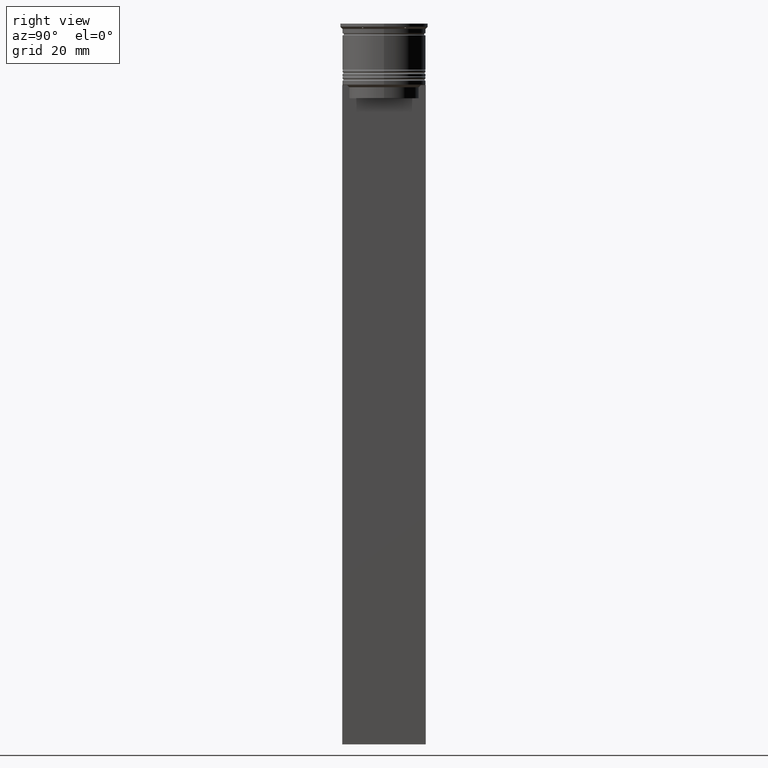
[diagram: clean part render]
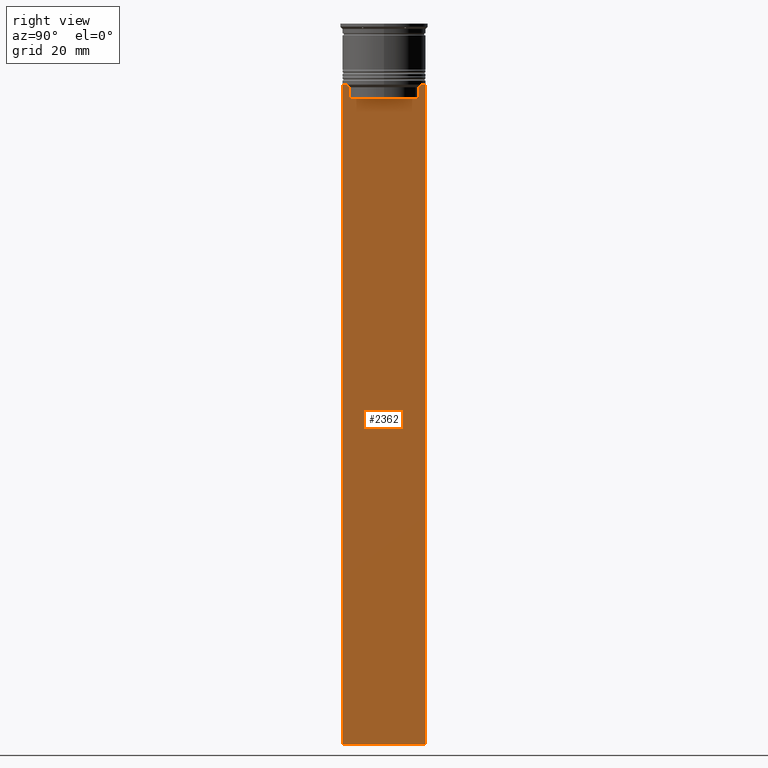
[diagram: same view with one face highlighted and labeled with its STEP entity id]
A machine part, right view. The second image highlights one B-rep face of the part: STEP entity #2362.
In plain terms, the highlighted planar face has unit normal (-1, 0, 0).
Its self-contained STEP definition (entity closure, byte-faithful):
#29 = CARTESIAN_POINT ( 'NONE',  ( 0.5000000000000000000, 7.884161337770803080, -14.50000000000000000 ) ) ;
#51 = CARTESIAN_POINT ( 'NONE',  ( 0.5000000000000000000, 7.884161337770803080, -14.50000000000000000 ) ) ;
#59 = VECTOR ( 'NONE', #1140, 1000.000000000000000 ) ;
#65 = DIRECTION ( 'NONE',  ( 0.000000000000000000, -1.000000000000000000, 0.000000000000000000 ) ) ;
#70 = EDGE_CURVE ( 'NONE', #1468, #2367, #1620, .T. ) ;
#77 = VERTEX_POINT ( 'NONE', #1476 ) ;
#176 = VECTOR ( 'NONE', #2489, 1000.000000000000000 ) ;
#210 = VECTOR ( 'NONE', #1593, 1000.000000000000000 ) ;
#212 = CARTESIAN_POINT ( 'NONE',  ( 0.5000000000000000000, 8.218133718559618828, -14.16667606394327983 ) ) ;
#215 = VERTEX_POINT ( 'NONE', #51 ) ;
#253 = EDGE_CURVE ( 'NONE', #2470, #1881, #1568, .T. ) ;
#264 = LINE ( 'NONE', #1933, #2396 ) ;
#289 = ORIENTED_EDGE ( 'NONE', *, *, #1635, .T. ) ;
#300 = CARTESIAN_POINT ( 'NONE',  ( 0.5000000000000000000, -9.500000000000001776, -14.00000000000000178 ) ) ;
#324 = ORIENTED_EDGE ( 'NONE', *, *, #2540, .T. ) ;
#330 = CARTESIAN_POINT ( 'NONE',  ( 0.5000000000000000000, -9.500000000000001776, -163.9999999999999716 ) ) ;
#365 = DIRECTION ( 'NONE',  ( 0.000000000000000000, 1.000000000000000000, 0.000000000000000000 ) ) ;
#427 = CARTESIAN_POINT ( 'NONE',  ( 0.5000000000000000000, -7.884161337770803080, -14.50000000000000000 ) ) ;
#504 = EDGE_CURVE ( 'NONE', #626, #77, #1657, .T. ) ;
#527 = LINE ( 'NONE', #728, #969 ) ;
#547 = B_SPLINE_CURVE_WITH_KNOTS ( 'NONE', 3,
 ( #1850, #212, #859, #29 ),
 .UNSPECIFIED., .F., .F.,
 ( 4, 4 ),
 ( 0.01426761478740281447, 0.01497538974438914448 ),
 .UNSPECIFIED. ) ;
#587 = B_SPLINE_CURVE_WITH_KNOTS ( 'NONE', 3,
 ( #2021, #2184, #1193, #959 ),
 .UNSPECIFIED., .F., .F.,
 ( 4, 4 ),
 ( 0.03673372442973153046, 0.03744389749832059688 ),
 .UNSPECIFIED. ) ;
#592 = CARTESIAN_POINT ( 'NONE',  ( 0.5000000000000000000, 8.385105843100605583, -14.00000000000000178 ) ) ;
#608 = VECTOR ( 'NONE', #2064, 1000.000000000000000 ) ;
#619 = DIRECTION ( 'NONE',  ( 0.000000000000000000, -1.000000000000000000, 0.000000000000000000 ) ) ;
#626 = VERTEX_POINT ( 'NONE', #1898 ) ;
#661 = VECTOR ( 'NONE', #2665, 1000.000000000000000 ) ;
#663 = FACE_OUTER_BOUND ( 'NONE', #2548, .T. ) ;
#728 = CARTESIAN_POINT ( 'NONE',  ( 0.5000000000000000000, -9.500000000000001776, -14.00000000000000178 ) ) ;
#740 = VECTOR ( 'NONE', #2671, 1000.000000000000000 ) ;
#811 = CARTESIAN_POINT ( 'NONE',  ( 0.5000000000000000000, 9.499999999999998224, 5.026297590440445440 ) ) ;
#825 = EDGE_CURVE ( 'NONE', #626, #2367, #2659, .T. ) ;
#859 = CARTESIAN_POINT ( 'NONE',  ( 0.5000000000000000000, 8.051152811434374001, -14.33334332653219079 ) ) ;
#889 = VERTEX_POINT ( 'NONE', #427 ) ;
#929 = LINE ( 'NONE', #1160, #59 ) ;
#951 = ORIENTED_EDGE ( 'NONE', *, *, #825, .F. ) ;
#959 = CARTESIAN_POINT ( 'NONE',  ( 0.5000000000000000000, -8.385105843100605583, -14.00000000000000178 ) ) ;
#969 = VECTOR ( 'NONE', #2582, 1000.000000000000000 ) ;
#1061 = CARTESIAN_POINT ( 'NONE',  ( 0.5000000000000000000, -9.500000000000001776, 5.026297590440445440 ) ) ;
#1072 = CARTESIAN_POINT ( 'NONE',  ( 0.5000000000000000000, 7.884161337770803080, -17.00000000000000000 ) ) ;
#1084 = EDGE_CURVE ( 'NONE', #889, #2325, #587, .T. ) ;
#1085 = DIRECTION ( 'NONE',  ( 0.000000000000000000, 0.000000000000000000, 1.000000000000000000 ) ) ;
#1140 = DIRECTION ( 'NONE',  ( 0.000000000000000000, 0.000000000000000000, -1.000000000000000000 ) ) ;
#1160 = CARTESIAN_POINT ( 'NONE',  ( 0.5000000000000000000, -9.500000000000001776, 5.026297590440445440 ) ) ;
#1193 = CARTESIAN_POINT ( 'NONE',  ( 0.5000000000000000000, -8.218133703942523738, -14.16667607853445787 ) ) ;
#1237 = CARTESIAN_POINT ( 'NONE',  ( 0.5000000000000000000, -7.884161337770803080, 0.000000000000000000 ) ) ;
#1242 = LINE ( 'NONE', #2492, #608 ) ;
#1247 = ORIENTED_EDGE ( 'NONE', *, *, #253, .T. ) ;
#1293 = CARTESIAN_POINT ( 'NONE',  ( 0.5000000000000000000, 9.499999999999998224, -163.9999999999999716 ) ) ;
#1301 = EDGE_CURVE ( 'NONE', #215, #2470, #1242, .T. ) ;
#1361 = CARTESIAN_POINT ( 'NONE',  ( 0.5000000000000000000, 7.899999999999994138, -17.00000000000000000 ) ) ;
#1468 = VERTEX_POINT ( 'NONE', #330 ) ;
#1474 = LINE ( 'NONE', #1237, #661 ) ;
#1476 = CARTESIAN_POINT ( 'NONE',  ( 0.5000000000000000000, 9.386692708297204035, -14.00000000000000178 ) ) ;
#1497 = EDGE_CURVE ( 'NONE', #77, #1897, #527, .T. ) ;
#1561 = ORIENTED_EDGE ( 'NONE', *, *, #504, .T. ) ;
#1568 = LINE ( 'NONE', #1361, #210 ) ;
#1573 = VECTOR ( 'NONE', #365, 1000.000000000000000 ) ;
#1593 = DIRECTION ( 'NONE',  ( 0.000000000000000000, -1.000000000000000000, 0.000000000000000000 ) ) ;
#1620 = LINE ( 'NONE', #1679, #1573 ) ;
#1635 = EDGE_CURVE ( 'NONE', #1881, #889, #1474, .T. ) ;
#1657 = LINE ( 'NONE', #2471, #2555 ) ;
#1670 = ORIENTED_EDGE ( 'NONE', *, *, #70, .T. ) ;
#1676 = LINE ( 'NONE', #2456, #176 ) ;
#1679 = CARTESIAN_POINT ( 'NONE',  ( 0.5000000000000000000, -9.500000000000001776, -163.9999999999999716 ) ) ;
#1682 = CARTESIAN_POINT ( 'NONE',  ( 0.5000000000000000000, -9.386692708297204035, -14.00000000000000178 ) ) ;
#1684 = EDGE_CURVE ( 'NONE', #2325, #1981, #1676, .T. ) ;
#1702 = PLANE ( 'NONE',  #2602 ) ;
#1742 = ORIENTED_EDGE ( 'NONE', *, *, #2436, .T. ) ;
#1756 = CARTESIAN_POINT ( 'NONE',  ( 0.5000000000000000000, -7.884161337770803080, -17.00000000000000000 ) ) ;
#1850 = CARTESIAN_POINT ( 'NONE',  ( 0.5000000000000000000, 8.385105843100605583, -14.00000000000000178 ) ) ;
#1881 = VERTEX_POINT ( 'NONE', #1756 ) ;
#1889 = VERTEX_POINT ( 'NONE', #300 ) ;
#1895 = ORIENTED_EDGE ( 'NONE', *, *, #1971, .T. ) ;
#1897 = VERTEX_POINT ( 'NONE', #592 ) ;
#1898 = CARTESIAN_POINT ( 'NONE',  ( 0.5000000000000000000, 9.499999999999998224, -14.00000000000000178 ) ) ;
#1903 = ORIENTED_EDGE ( 'NONE', *, *, #1684, .T. ) ;
#1933 = CARTESIAN_POINT ( 'NONE',  ( 0.5000000000000000000, -9.500000000000001776, -14.00000000000000178 ) ) ;
#1971 = EDGE_CURVE ( 'NONE', #1897, #215, #547, .T. ) ;
#1981 = VERTEX_POINT ( 'NONE', #1682 ) ;
#2021 = CARTESIAN_POINT ( 'NONE',  ( 0.5000000000000000000, -7.884161337770803080, -14.50000000000000000 ) ) ;
#2064 = DIRECTION ( 'NONE',  ( 0.000000000000000000, 0.000000000000000000, -1.000000000000000000 ) ) ;
#2076 = ORIENTED_EDGE ( 'NONE', *, *, #1301, .T. ) ;
#2184 = CARTESIAN_POINT ( 'NONE',  ( 0.5000000000000000000, -8.051152795888546265, -14.33334334204685057 ) ) ;
#2261 = CARTESIAN_POINT ( 'NONE',  ( 0.5000000000000000000, -8.385105843100605583, -14.00000000000000178 ) ) ;
#2323 = ORIENTED_EDGE ( 'NONE', *, *, #1084, .T. ) ;
#2325 = VERTEX_POINT ( 'NONE', #2261 ) ;
#2330 = DIRECTION ( 'NONE',  ( -1.000000000000000000, 0.000000000000000000, 0.000000000000000000 ) ) ;
#2362 = ADVANCED_FACE ( 'NONE', ( #663 ), #1702, .F. ) ;
#2367 = VERTEX_POINT ( 'NONE', #1293 ) ;
#2376 = ORIENTED_EDGE ( 'NONE', *, *, #1497, .T. ) ;
#2396 = VECTOR ( 'NONE', #65, 1000.000000000000000 ) ;
#2436 = EDGE_CURVE ( 'NONE', #1981, #1889, #264, .T. ) ;
#2456 = CARTESIAN_POINT ( 'NONE',  ( 0.5000000000000000000, -9.500000000000001776, -14.00000000000000178 ) ) ;
#2470 = VERTEX_POINT ( 'NONE', #1072 ) ;
#2471 = CARTESIAN_POINT ( 'NONE',  ( 0.5000000000000000000, -9.500000000000001776, -14.00000000000000178 ) ) ;
#2489 = DIRECTION ( 'NONE',  ( 0.000000000000000000, -1.000000000000000000, 0.000000000000000000 ) ) ;
#2492 = CARTESIAN_POINT ( 'NONE',  ( 0.5000000000000000000, 7.884161337770803080, 0.000000000000000000 ) ) ;
#2540 = EDGE_CURVE ( 'NONE', #1889, #1468, #929, .T. ) ;
#2548 = EDGE_LOOP ( 'NONE', ( #2376, #1895, #2076, #1247, #289, #2323, #1903, #1742, #324, #1670, #951, #1561 ) ) ;
#2555 = VECTOR ( 'NONE', #619, 1000.000000000000000 ) ;
#2582 = DIRECTION ( 'NONE',  ( 0.000000000000000000, -1.000000000000000000, 0.000000000000000000 ) ) ;
#2602 = AXIS2_PLACEMENT_3D ( 'NONE', #1061, #2330, #1085 ) ;
#2659 = LINE ( 'NONE', #811, #740 ) ;
#2665 = DIRECTION ( 'NONE',  ( -0.000000000000000000, -0.000000000000000000, 1.000000000000000000 ) ) ;
#2671 = DIRECTION ( 'NONE',  ( 0.000000000000000000, 0.000000000000000000, -1.000000000000000000 ) ) ;